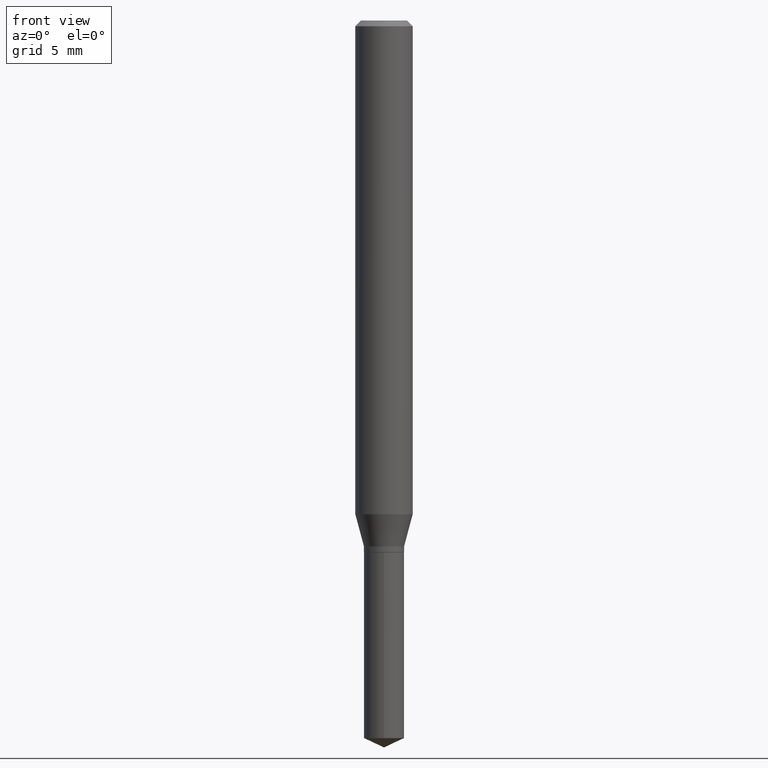
[diagram: clean part render]
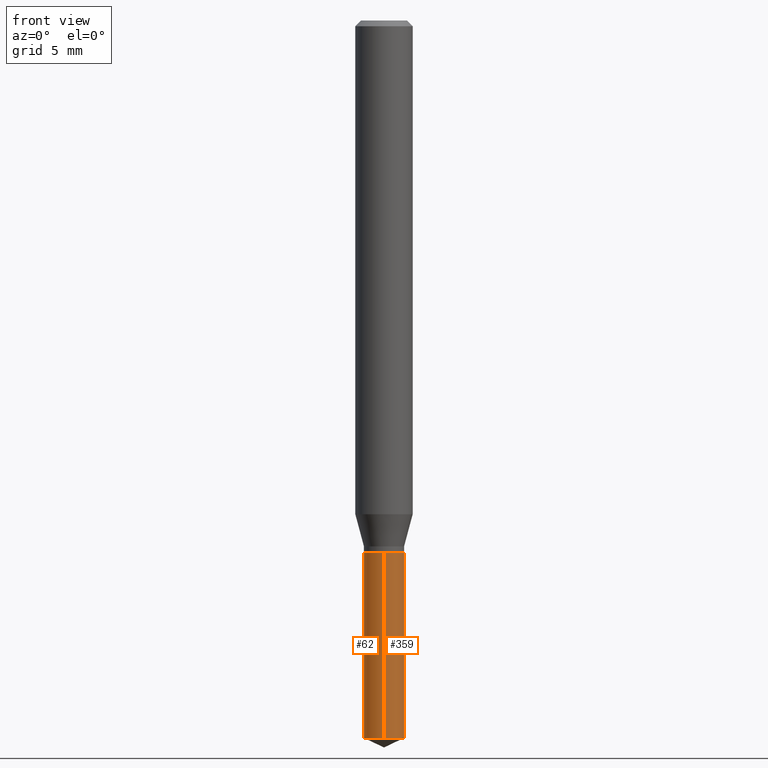
[diagram: same view with one multi-face feature highlighted, each face labeled with its STEP entity id]
A machine part, front view. The highlighted faces form ONE feature: a constant-radius fillet chain: 2 tangent blend faces with common blend radius 1.0503 mm. The faces share edges in the B-rep.
Their STEP definitions:
[1] entity #62 (Cylinder):
#10 = VERTEX_POINT ( 'NONE', #405 ) ;
#20 = AXIS2_PLACEMENT_3D ( 'NONE', #211, #208, #45 ) ;
#29 = EDGE_CURVE ( 'NONE', #10, #237, #487, .T. ) ;
#35 = CARTESIAN_POINT ( 'NONE',  ( 2.676565608369631794E-29, -3.821426325363822773E-15, -1.094499999999999806 ) ) ;
#45 = DIRECTION ( 'NONE',  ( -6.982962677686265922E-15, -1.000000000000000000, 6.606645692053841341E-15 ) ) ;
#53 = CARTESIAN_POINT ( 'NONE',  ( 2.676565608369631794E-29, -3.821426325363822773E-15, -1.094499999999999806 ) ) ;
#60 = CIRCLE ( 'NONE', #20, 0.04134999999999999787 ) ;
#62 = ADVANCED_FACE ( 'NONE', ( #162 ), #336, .T. ) ;
#84 = ORIENTED_EDGE ( 'NONE', *, *, #120, .F. ) ;
#95 = VERTEX_POINT ( 'NONE', #152 ) ;
#114 = VECTOR ( 'NONE', #381, 39.37007874015748143 ) ;
#117 = CARTESIAN_POINT ( 'NONE',  ( 2.938094212368281344E-16, 0.04134999999999617454, -1.094500000000000028 ) ) ;
#120 = EDGE_CURVE ( 'NONE', #95, #237, #472, .T. ) ;
#152 = CARTESIAN_POINT ( 'NONE',  ( 2.938094212368375514E-16, 0.04134999999999618148, -1.094500000000000028 ) ) ;
#157 = DIRECTION ( 'NONE',  ( -2.445458899330790108E-29, 3.491495526022433599E-15, 1.000000000000000000 ) ) ;
#162 = FACE_OUTER_BOUND ( 'NONE', #445, .T. ) ;
#167 = ORIENTED_EDGE ( 'NONE', *, *, #480, .F. ) ;
#175 = VERTEX_POINT ( 'NONE', #470 ) ;
#204 = VECTOR ( 'NONE', #157, 39.37007874015748143 ) ;
#208 = DIRECTION ( 'NONE',  ( -2.445458899330790108E-29, 3.491495526022433205E-15, 1.000000000000000000 ) ) ;
#211 = CARTESIAN_POINT ( 'NONE',  ( 3.611508999955605418E-29, -5.156288534538537160E-15, -1.476818178335290943 ) ) ;
#215 = DIRECTION ( 'NONE',  ( -2.445458899330790108E-29, 3.491495526022433205E-15, 1.000000000000000000 ) ) ;
#237 = VERTEX_POINT ( 'NONE', #385 ) ;
#245 = EDGE_CURVE ( 'NONE', #175, #10, #60, .T. ) ;
#255 = ORIENTED_EDGE ( 'NONE', *, *, #29, .T. ) ;
#257 = AXIS2_PLACEMENT_3D ( 'NONE', #53, #215, #291 ) ;
#270 = AXIS2_PLACEMENT_3D ( 'NONE', #35, #479, #318 ) ;
#291 = DIRECTION ( 'NONE',  ( -6.982962677686265922E-15, -1.000000000000000000, 3.303322846026920670E-15 ) ) ;
#318 = DIRECTION ( 'NONE',  ( -6.982962677686265922E-15, -1.000000000000000000, 3.303322846026920670E-15 ) ) ;
#336 = CYLINDRICAL_SURFACE ( 'NONE', #270, 0.04134999999999999787 ) ;
#376 = ORIENTED_EDGE ( 'NONE', *, *, #245, .T. ) ;
#381 = DIRECTION ( 'NONE',  ( -2.445458899330790108E-29, 3.491495526022433599E-15, 1.000000000000000000 ) ) ;
#385 = CARTESIAN_POINT ( 'NONE',  ( -2.887455067223003214E-16, -0.04135000000000382120, -1.094499999999999806 ) ) ;
#405 = CARTESIAN_POINT ( 'NONE',  ( -2.887455067222910523E-16, -0.04135000000000516734, -1.476818178335290721 ) ) ;
#445 = EDGE_LOOP ( 'NONE', ( #167, #376, #255, #84 ) ) ;
#452 = LINE ( 'NONE', #117, #114 ) ;
#453 = CARTESIAN_POINT ( 'NONE',  ( -2.887455067223003214E-16, -0.04135000000000382120, -1.094499999999999806 ) ) ;
#470 = CARTESIAN_POINT ( 'NONE',  ( 2.938094212368375514E-16, 0.04134999999999484921, -1.476818178335291165 ) ) ;
#472 = CIRCLE ( 'NONE', #257, 0.04134999999999999787 ) ;
#479 = DIRECTION ( 'NONE',  ( -2.445458899330790108E-29, 3.491495526022433205E-15, 1.000000000000000000 ) ) ;
#480 = EDGE_CURVE ( 'NONE', #175, #95, #452, .T. ) ;
#487 = LINE ( 'NONE', #453, #204 ) ;
[2] entity #359 (Cylinder):
#10 = VERTEX_POINT ( 'NONE', #405 ) ;
#25 = CARTESIAN_POINT ( 'NONE',  ( 2.676565608369631794E-29, -3.821426325363822773E-15, -1.094499999999999806 ) ) ;
#29 = EDGE_CURVE ( 'NONE', #10, #237, #487, .T. ) ;
#63 = CARTESIAN_POINT ( 'NONE',  ( 3.611508999955605418E-29, -5.156288534538537160E-15, -1.476818178335290943 ) ) ;
#64 = ORIENTED_EDGE ( 'NONE', *, *, #341, .F. ) ;
#71 = EDGE_LOOP ( 'NONE', ( #209, #435, #64, #169 ) ) ;
#95 = VERTEX_POINT ( 'NONE', #152 ) ;
#102 = DIRECTION ( 'NONE',  ( -6.982962677686265922E-15, -1.000000000000000000, 6.606645692053841341E-15 ) ) ;
#114 = VECTOR ( 'NONE', #381, 39.37007874015748143 ) ;
#117 = CARTESIAN_POINT ( 'NONE',  ( 2.938094212368281344E-16, 0.04134999999999617454, -1.094500000000000028 ) ) ;
#146 = FACE_OUTER_BOUND ( 'NONE', #71, .T. ) ;
#152 = CARTESIAN_POINT ( 'NONE',  ( 2.938094212368375514E-16, 0.04134999999999618148, -1.094500000000000028 ) ) ;
#155 = AXIS2_PLACEMENT_3D ( 'NONE', #63, #360, #102 ) ;
#157 = DIRECTION ( 'NONE',  ( -2.445458899330790108E-29, 3.491495526022433599E-15, 1.000000000000000000 ) ) ;
#169 = ORIENTED_EDGE ( 'NONE', *, *, #29, .F. ) ;
#175 = VERTEX_POINT ( 'NONE', #470 ) ;
#204 = VECTOR ( 'NONE', #157, 39.37007874015748143 ) ;
#209 = ORIENTED_EDGE ( 'NONE', *, *, #287, .T. ) ;
#217 = CIRCLE ( 'NONE', #398, 0.04134999999999999787 ) ;
#223 = CYLINDRICAL_SURFACE ( 'NONE', #278, 0.04134999999999999787 ) ;
#237 = VERTEX_POINT ( 'NONE', #385 ) ;
#260 = DIRECTION ( 'NONE',  ( -2.445458899330790108E-29, 3.491495526022433205E-15, 1.000000000000000000 ) ) ;
#278 = AXIS2_PLACEMENT_3D ( 'NONE', #476, #260, #366 ) ;
#287 = EDGE_CURVE ( 'NONE', #10, #175, #289, .T. ) ;
#289 = CIRCLE ( 'NONE', #155, 0.04134999999999999787 ) ;
#305 = DIRECTION ( 'NONE',  ( -6.982962677686265922E-15, -1.000000000000000000, 3.303322846026920670E-15 ) ) ;
#337 = DIRECTION ( 'NONE',  ( -2.445458899330790108E-29, 3.491495526022433205E-15, 1.000000000000000000 ) ) ;
#341 = EDGE_CURVE ( 'NONE', #237, #95, #217, .T. ) ;
#359 = ADVANCED_FACE ( 'NONE', ( #146 ), #223, .T. ) ;
#360 = DIRECTION ( 'NONE',  ( -2.445458899330790108E-29, 3.491495526022433205E-15, 1.000000000000000000 ) ) ;
#366 = DIRECTION ( 'NONE',  ( -6.982962677686265922E-15, -1.000000000000000000, 3.303322846026920670E-15 ) ) ;
#381 = DIRECTION ( 'NONE',  ( -2.445458899330790108E-29, 3.491495526022433599E-15, 1.000000000000000000 ) ) ;
#385 = CARTESIAN_POINT ( 'NONE',  ( -2.887455067223003214E-16, -0.04135000000000382120, -1.094499999999999806 ) ) ;
#398 = AXIS2_PLACEMENT_3D ( 'NONE', #25, #337, #305 ) ;
#405 = CARTESIAN_POINT ( 'NONE',  ( -2.887455067222910523E-16, -0.04135000000000516734, -1.476818178335290721 ) ) ;
#435 = ORIENTED_EDGE ( 'NONE', *, *, #480, .T. ) ;
#452 = LINE ( 'NONE', #117, #114 ) ;
#453 = CARTESIAN_POINT ( 'NONE',  ( -2.887455067223003214E-16, -0.04135000000000382120, -1.094499999999999806 ) ) ;
#470 = CARTESIAN_POINT ( 'NONE',  ( 2.938094212368375514E-16, 0.04134999999999484921, -1.476818178335291165 ) ) ;
#476 = CARTESIAN_POINT ( 'NONE',  ( 2.676565608369631794E-29, -3.821426325363822773E-15, -1.094499999999999806 ) ) ;
#480 = EDGE_CURVE ( 'NONE', #175, #95, #452, .T. ) ;
#487 = LINE ( 'NONE', #453, #204 ) ;